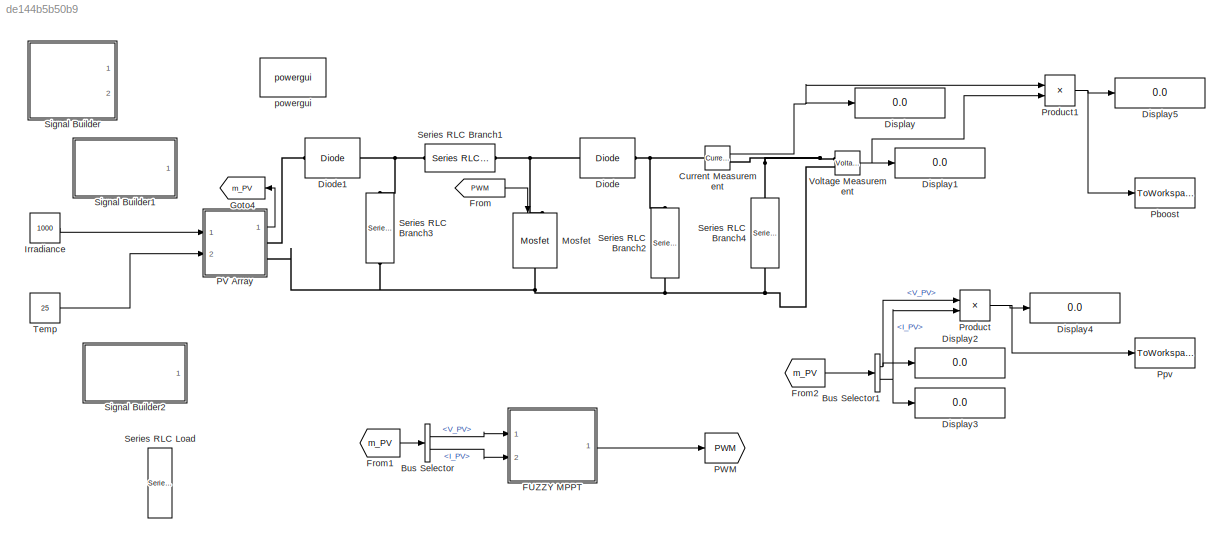
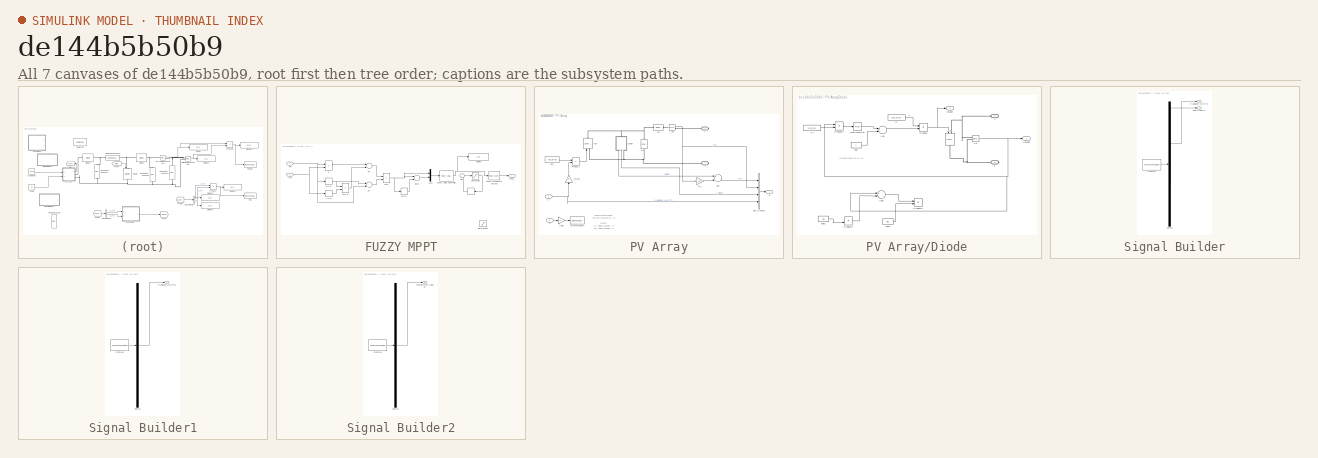
[diagram: thumbnail index - all 7 canvases of the model, root first then tree order]
MODEL slx_de144b5b50b9
KIND model
BLOCK [BusSelector] Bus Selector
  OutputSignals = V_PV,I_PV
  Ports = [1, 2]
BLOCK [BusSelector] Bus Selector1
  OutputSignals = V_PV,I_PV
  Ports = [1, 2]
BLOCK [Reference] Current Measurement  REF=powerlib/Measurements/Current Measurement
  OutputType = Complex
  PSBequivalent = 0
  PhasorSimulation = off
  Ports = [0, 1, 0, 0, 0, 1, 1]
  SourceBlock = powerlib/Measurements/Current Measurement
  SourceType = Current Measurement
  UserDataPersistent = on
BLOCK [Reference] Diode  REF=powerlib/Power
Electronics/Diode
  Cs = 250e-9
  IC = 0
  Lon = 0
  Measurements = off
  Ports = [0, 0, 0, 0, 0, 1, 1]
  Ron = 0.001
  Rs = 500
  SourceBlock = powerlib/Power\nElectronics/Diode
  SourceType = Diode
  UseSnubber = off
  Vf = 0.8
BLOCK [Reference] Diode1  REF=powerlib/Power
Electronics/Diode
  Cs = 250e-9
  IC = 0
  Lon = 0
  Measurements = off
  Ports = [0, 0, 0, 0, 0, 1, 1]
  Ron = 0.001
  Rs = 500
  SourceBlock = powerlib/Power\nElectronics/Diode
  SourceType = Diode
  UseSnubber = off
  Vf = 0.8
BLOCK [Display] Display
  Decimation = 1
  Ports = [1]
BLOCK [Display] Display1
  Decimation = 1
  Ports = [1]
BLOCK [Display] Display2
  Decimation = 1
  Ports = [1]
BLOCK [Display] Display3
  Decimation = 1
  Ports = [1]
BLOCK [Display] Display4
  Decimation = 1
  Ports = [1]
BLOCK [Display] Display5
  Decimation = 1
  Ports = [1]
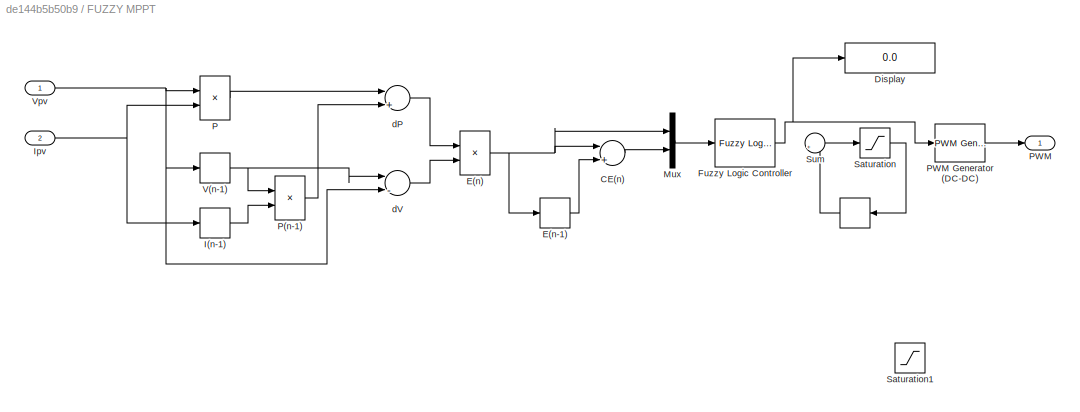
BLOCK [SubSystem] FUZZY MPPT
  Ports = [2, 1]
  RequestExecContextInheritance = off
BLOCK [Memory] FUZZY MPPT/ 
BLOCK [Sum] FUZZY MPPT/CE(n)
  InputSameDT = off
  Inputs = |+-
  OutDataTypeStr = Inherit: Inherit via internal rule
  Ports = [2, 1]
  SaturateOnIntegerOverflow = off
BLOCK [Display] FUZZY MPPT/Display
  Decimation = 1
  Ports = [1]
BLOCK [Product] FUZZY MPPT/E(n)
  InputSameDT = off
  Inputs = */
  OutDataTypeStr = Inherit: Inherit via internal rule
  Ports = [2, 1]
  RndMeth = Floor
  SaturateOnIntegerOverflow = off
BLOCK [Memory] FUZZY MPPT/E(n-1)
BLOCK [Reference] FUZZY MPPT/Fuzzy Logic Controller  REF=fuzblock/Fuzzy Logic   (lib defined in mdl_858b3b3e7478)
Controller
  Ports = [1, 1]
  SourceBlock = fuzblock/Fuzzy Logic \nController
  SourceType = FIS
  fis = 'fuzzymppt2.fis'
BLOCK [Memory] FUZZY MPPT/I(n-1)
BLOCK [Inport] FUZZY MPPT/Ipv
  IconDisplay = Port number
  Port = 2
BLOCK [Mux] FUZZY MPPT/Mux
  DisplayOption = bar
  Inputs = 2
  Ports = [2, 1]
BLOCK [Product] FUZZY MPPT/P
  InputSameDT = off
  OutDataTypeStr = Inherit: Inherit via internal rule
  Ports = [2, 1]
  RndMeth = Floor
  SaturateOnIntegerOverflow = off
BLOCK [Product] FUZZY MPPT/P(n-1)
  InputSameDT = off
  OutDataTypeStr = Inherit: Inherit via internal rule
  Ports = [2, 1]
  RndMeth = Floor
  SaturateOnIntegerOverflow = off
BLOCK [Outport] FUZZY MPPT/PWM
  IconDisplay = Port number
BLOCK [Reference] FUZZY MPPT/PWM Generator (DC-DC)  REF=powerlib_meascontrol/Pulse & Signal
Generators/PWM Generator
(DC-DC)
  Fsw = 50000
  Ports = [1, 1]
  SourceBlock = powerlib_meascontrol/Pulse & Signal\nGenerators/PWM Generator\n(DC-DC)
  SourceType = PWM Generator (DC-DC)
  Ts = 0
BLOCK [Saturate] FUZZY MPPT/Saturation
  InputPortMap = u0
  Ports = [1, 1]
BLOCK [Saturate] FUZZY MPPT/Saturation1
  InputPortMap = u0
  Ports = [1, 1]
BLOCK [Sum] FUZZY MPPT/Sum
  IconShape = round
  InputSameDT = off
  Inputs = |++
  OutDataTypeStr = Inherit: Inherit via internal rule
  Ports = [2, 1]
  SaturateOnIntegerOverflow = off
BLOCK [Memory] FUZZY MPPT/V(n-1)
BLOCK [Inport] FUZZY MPPT/Vpv
  IconDisplay = Port number
BLOCK [Sum] FUZZY MPPT/dP
  InputSameDT = off
  Inputs = |+-
  OutDataTypeStr = Inherit: Inherit via internal rule
  Ports = [2, 1]
  SaturateOnIntegerOverflow = off
BLOCK [Sum] FUZZY MPPT/dV
  InputSameDT = off
  Inputs = |-+
  OutDataTypeStr = Inherit: Inherit via internal rule
  Ports = [2, 1]
  SaturateOnIntegerOverflow = off
BLOCK [From] From
  GotoTag = PWM
  TagVisibility = global
BLOCK [From] From1
  GotoTag = m_PV
  TagVisibility = global
BLOCK [From] From2
  GotoTag = m_PV
  TagVisibility = global
BLOCK [Goto] Goto4
  GotoTag = m_PV
  TagVisibility = global
BLOCK [Constant] Irradiance
  Value = 1000
BLOCK [Reference] Mosfet  REF=powerlib/Power
Electronics/Mosfet
  Cs = inf
  IC = 0
  Lon = 0
  Measurements = off
  Ports = [1, 0, 0, 0, 0, 1, 1]
  Rd = 0.01
  Ron = 0.1
  Rs = 1e5
  SourceBlock = powerlib/Power\nElectronics/Mosfet
  SourceType = Mosfet
  Vfd = 0
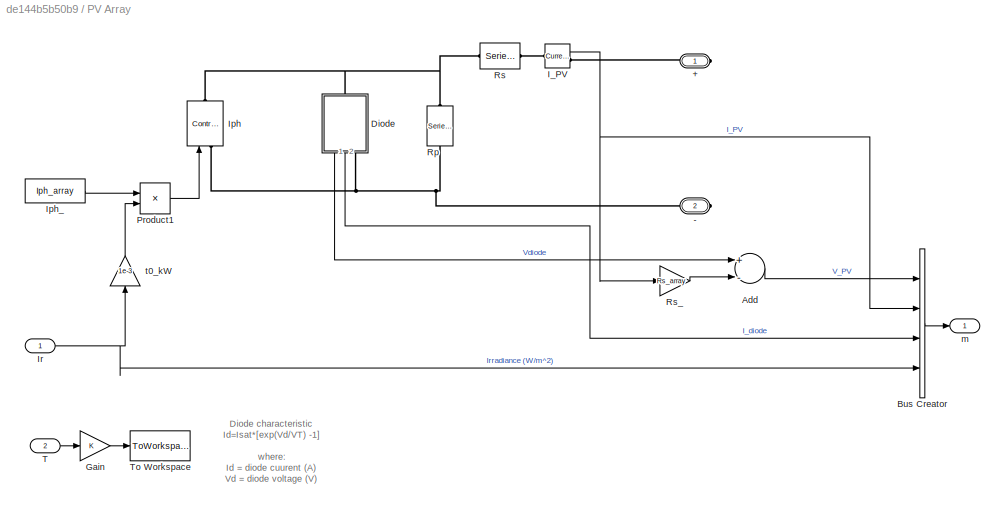
BLOCK [SubSystem] PV Array
  Ports = [2, 1, 0, 0, 0, 0, 2]
  RequestExecContextInheritance = off
BLOCK [PMIOPort] PV Array/+
  Port = 1
  Side = Right
BLOCK [PMIOPort] PV Array/-
  Port = 2
  Side = Right
BLOCK [Sum] PV Array/Add
  InputSameDT = off
  Inputs = +-
  OutDataTypeStr = Inherit: Inherit via internal rule
  Ports = [2, 1]
  SaturateOnIntegerOverflow = off
BLOCK [BusCreator] PV Array/Bus Creator
  DisplayOption = bar
  Ports = [4, 1]
BLOCK [SubSystem] PV Array/Diode
  Ports = [0, 2, 0, 0, 0, 1, 1]
  RequestExecContextInheritance = off
BLOCK [PMIOPort] PV Array/Diode/A
  Port = 1
  Side = Left
BLOCK [Sum] PV Array/Diode/Add
  InputSameDT = off
  Inputs = +-
  OutDataTypeStr = Inherit: Inherit via internal rule
  Ports = [2, 1]
  SaturateOnIntegerOverflow = off
BLOCK [Sum] PV Array/Diode/Add1
  InputSameDT = off
  OutDataTypeStr = Inherit: Inherit via internal rule
  Ports = [2, 1]
  SaturateOnIntegerOverflow = off
BLOCK [Reference] PV Array/Diode/Id  REF=powerlib/Electrical
Sources/Controlled Current Source
  Amplitude = 0
  Frequency = 0
  Initialize = on
  Measurements = None
  Phase = 0
  Ports = [1, 0, 0, 0, 0, 1, 1]
  SourceBlock = powerlib/Electrical\nSources/Controlled Current Source
  SourceType = Controlled Current Source
  Source_Type = AC
BLOCK [Outport] PV Array/Diode/Idiode
  IconDisplay = Port number
  Port = 2
BLOCK [Constant] PV Array/Diode/Is
  Value = Isat_array
BLOCK [PMIOPort] PV Array/Diode/K
  Port = 2
  Side = Right
BLOCK [Math] PV Array/Diode/Math Function
  Ports = [1, 1]
BLOCK [Product] PV Array/Diode/Product
  InputSameDT = off
  OutDataTypeStr = Inherit: Inherit via internal rule
  Ports = [2, 1]
  SaturateOnIntegerOverflow = off
BLOCK [Product] PV Array/Diode/Product1
  InputSameDT = off
  Inputs = */
  OutDataTypeStr = Inherit: Inherit via internal rule
  Ports = [2, 1]
  SaturateOnIntegerOverflow = off
BLOCK [Product] PV Array/Diode/Product2
  InputSameDT = off
  OutDataTypeStr = Inherit: Inherit via internal rule
  Ports = [2, 1]
  SaturateOnIntegerOverflow = off
BLOCK [Product] PV Array/Diode/Product3
  InputSameDT = off
  Inputs = */
  OutDataTypeStr = Inherit: Inherit via internal rule
  Ports = [2, 1]
  SaturateOnIntegerOverflow = off
BLOCK [Constant] PV Array/Diode/VT
  Value = VT_array
BLOCK [Reference] PV Array/Diode/Vd  REF=powerlib/Measurements/Voltage Measurement
  OutputType = Complex
  PSBequivalent = 0
  PhasorSimulation = off
  Ports = [0, 1, 0, 0, 0, 2]
  SourceBlock = powerlib/Measurements/Voltage Measurement
  SourceType = Voltage Measurement
BLOCK [Outport] PV Array/Diode/Vdiode
  IconDisplay = Port number
BLOCK [Constant] PV Array/Diode/one
BLOCK [Constant] PV Array/Diode/one1
  Value = Rs
BLOCK [Constant] PV Array/Diode/one2
  Value = Rp
BLOCK [Gain] PV Array/Gain
  OutDataTypeStr = Inherit: Inherit via internal rule
  ParamDataTypeStr = Inherit: Inherit via internal rule
  SaturateOnIntegerOverflow = off
BLOCK [Reference] PV Array/I_PV  REF=powerlib/Measurements/Current Measurement
  OutputType = Complex
  PSBequivalent = 0
  PhasorSimulation = off
  Ports = [0, 1, 0, 0, 0, 1, 1]
  SourceBlock = powerlib/Measurements/Current Measurement
  SourceType = Current Measurement
BLOCK [Reference] PV Array/Iph  REF=powerlib/Electrical
Sources/Controlled Current Source
  Amplitude = 0
  Frequency = 0
  Initialize = on
  Measurements = None
  Phase = 0
  Ports = [1, 0, 0, 0, 0, 1, 1]
  SourceBlock = powerlib/Electrical\nSources/Controlled Current Source
  SourceType = Controlled Current Source
  Source_Type = AC
BLOCK [Constant] PV Array/Iph_
  Value = Iph_array
BLOCK [Inport] PV Array/Ir
  IconDisplay = Port number
BLOCK [Product] PV Array/Product1
  InputSameDT = off
  Inputs = **
  OutDataTypeStr = Inherit: Inherit via internal rule
  Ports = [2, 1]
  SaturateOnIntegerOverflow = off
BLOCK [Reference] PV Array/Rp  REF=powerlib/Elements/Series RLC Branch
  BranchType = R
  Capacitance = 1e-6
  Inductance = 1e-3
  InitialCurrent = 0
  InitialVoltage = 0
  LConnTagsString = __new0
  Measurements = Branch current
  Ports = [0, 0, 0, 0, 0, 1, 1]
  RConnTagsString = __new0
  Resistance = Rp_array
  SetiL0 = off
  Setx0 = off
  SourceBlock = powerlib/Elements/Series RLC Branch
  SourceType = Series RLC Branch
BLOCK [Reference] PV Array/Rs  REF=powerlib/Elements/Series RLC Branch
  BranchType = R
  Capacitance = 1e-6
  Inductance = 1e-3
  InitialCurrent = 0
  InitialVoltage = 0
  LConnTagsString = __new0
  Measurements = None
  Ports = [0, 0, 0, 0, 0, 1, 1]
  RConnTagsString = __new0
  Resistance = Rs_array
  SetiL0 = off
  Setx0 = off
  SourceBlock = powerlib/Elements/Series RLC Branch
  SourceType = Series RLC Branch
BLOCK [Gain] PV Array/Rs_
  Gain = Rs_array
  OutDataTypeStr = Inherit: Inherit via internal rule
  ParamDataTypeStr = Inherit: Inherit via internal rule
  SaturateOnIntegerOverflow = off
BLOCK [Inport] PV Array/T
  IconDisplay = Port number
  Port = 2
BLOCK [ToWorkspace] PV Array/To Workspace
  FixptAsFi = on
  MaxDataPoints = inf
  Ports = [1]
  SampleTime = -1
  SaveFormat = Structure
  VariableName = T_user
BLOCK [Outport] PV Array/m
  IconDisplay = Port number
BLOCK [Gain] PV Array/t0_kW
  Gain = 1e-3
  OutDataTypeStr = Inherit: Inherit via internal rule
  ParamDataTypeStr = Inherit: Inherit via internal rule
  SaturateOnIntegerOverflow = off
BLOCK [Goto] PWM
  GotoTag = PWM
  TagVisibility = global
BLOCK [ToWorkspace] Pboost
  FixptAsFi = on
  MaxDataPoints = inf
  Ports = [1]
  SampleTime = -1
  Save2DSignal = 3-D array (concatenate along third dimension)
  SaveFormat = Timeseries
  VariableName = Pboost
BLOCK [ToWorkspace] Ppv
  FixptAsFi = on
  MaxDataPoints = inf
  Ports = [1]
  SampleTime = -1
  Save2DSignal = 3-D array (concatenate along third dimension)
  SaveFormat = Timeseries
  VariableName = Ppv
BLOCK [Product] Product
  InputSameDT = off
  OutDataTypeStr = Inherit: Inherit via internal rule
  Ports = [2, 1]
  RndMeth = Floor
  SaturateOnIntegerOverflow = off
BLOCK [Product] Product1
  InputSameDT = off
  OutDataTypeStr = Inherit: Inherit via internal rule
  Ports = [2, 1]
  RndMeth = Floor
  SaturateOnIntegerOverflow = off
BLOCK [Reference] Series RLC Branch1  REF=powerlib/Elements/Series RLC Branch
  BranchType = L
  Capacitance = 1e-6
  Inductance = 160e-6
  InitialCurrent = 0
  InitialVoltage = 0
  LConnTagsString = __new0
  Measurements = None
  Ports = [0, 0, 0, 0, 0, 1, 1]
  RConnTagsString = __new0
  Resistance = 1
  SetiL0 = off
  Setx0 = off
  SourceBlock = powerlib/Elements/Series RLC Branch
  SourceType = Series RLC Branch
BLOCK [Reference] Series RLC Branch2  REF=powerlib/Elements/Series RLC Branch
  BranchType = C
  Capacitance = 10e-6
  Inductance = 1e-3
  InitialCurrent = 0
  InitialVoltage = 0
  LConnTagsString = __new0
  Measurements = None
  Ports = [0, 0, 0, 0, 0, 1, 1]
  RConnTagsString = __new0
  Resistance = 1
  SetiL0 = off
  Setx0 = off
  SourceBlock = powerlib/Elements/Series RLC Branch
  SourceType = Series RLC Branch
BLOCK [Reference] Series RLC Branch3  REF=powerlib/Elements/Series RLC Branch
  BranchType = C
  Capacitance = 1000e-6
  Inductance = 1e-3
  InitialCurrent = 0
  InitialVoltage = 0
  LConnTagsString = __new0
  Measurements = None
  Ports = [0, 0, 0, 0, 0, 1, 1]
  RConnTagsString = __new0
  Resistance = 1
  SetiL0 = off
  Setx0 = off
  SourceBlock = powerlib/Elements/Series RLC Branch
  SourceType = Series RLC Branch
BLOCK [Reference] Series RLC Branch4  REF=powerlib/Elements/Series RLC Branch
  BranchType = R
  Capacitance = 1e-6
  Inductance = 1e-3
  InitialCurrent = 0
  InitialVoltage = 0
  LConnTagsString = __new0
  Measurements = None
  Ports = [0, 0, 0, 0, 0, 1, 1]
  RConnTagsString = __new0
  Resistance = 9.8
  SetiL0 = off
  Setx0 = off
  SourceBlock = powerlib/Elements/Series RLC Branch
  SourceType = Series RLC Branch
BLOCK [Reference] Series RLC Load  REF=powerlib/Elements/Series RLC Load
  ActivePower = 305
  AttributesFormatString = \n
  CapacitivePower = 0
  InductivePower = 0
  InitialCurrent = 0
  InitialVoltage = 0
  LConnTagsString = a
  Measurements = None
  NominalFrequency = 50000
  NominalVoltage = 100
  Ports = [0, 0, 0, 0, 0, 1, 1]
  RConnTagsString = __new0
  SetiL0 = off
  Setx0 = off
  SourceBlock = powerlib/Elements/Series RLC Load
  SourceType = Series RLC Load
BLOCK [SubSystem] Signal Builder
  ClipboardFcn = sigbuilder_block('clipboard');
  CloseFcn = sigbuilder_block('close');
  ContinueFcn = sigbuilder_block('continue');
  CopyFcn = sigbuilder_block('copy');
  DeleteFcn = sigbuilder_block('delete');
  LoadFcn = sigbuilder_block('load');
  MaskHideContents = on
  ModelCloseFcn = sigbuilder_block('modelClose');
  NameChangeFcn = sigbuilder_block('namechange');
  OpenFcn = sigbuilder_block('open',[311.25 125.25 550.5 395.25 ]);
  PauseFcn = sigbuilder_block('pause');
  Ports = [0, 2]
  PreSaveFcn = sigbuilder_block('preSave');
  RequestExecContextInheritance = off
  StartFcn = sigbuilder_block('start');
  StopFcn = sigbuilder_block('stop');
  Tag = STV Subsys
BLOCK [Demux] Signal Builder/Demux
  Outputs = 2
  Ports = [1, 2]
  Tag = STV Demux
BLOCK [FromWorkspace] Signal Builder/FromWs
  SampleTime = 0
  Tag = STV FromWs
  VariableName = tuvar
  ZeroCross = on
BLOCK [Outport] Signal Builder/Irradiance (W//m^2)
  IconDisplay = Port number
  Tag = STV Outport
BLOCK [Outport] Signal Builder/Temp (deg C)
  IconDisplay = Port number
  Port = 2
  Tag = STV Outport
BLOCK [SubSystem] Signal Builder1
  ClipboardFcn = sigbuilder_block('clipboard');
  CloseFcn = sigbuilder_block('close');
  ContinueFcn = sigbuilder_block('continue');
  CopyFcn = sigbuilder_block('copy');
  DeleteFcn = sigbuilder_block('delete');
  LoadFcn = sigbuilder_block('load');
  MaskHideContents = on
  ModelCloseFcn = sigbuilder_block('modelClose');
  NameChangeFcn = sigbuilder_block('namechange');
  OpenFcn = sigbuilder_block('open',[311.25 125.25 550.5 395.25 ]);
  PauseFcn = sigbuilder_block('pause');
  Ports = [0, 1]
  PreSaveFcn = sigbuilder_block('preSave');
  RequestExecContextInheritance = off
  StartFcn = sigbuilder_block('start');
  StopFcn = sigbuilder_block('stop');
  Tag = STV Subsys
BLOCK [Demux] Signal Builder1/Demux
  Outputs = 1
  Ports = [1, 1]
  Tag = STV Demux
BLOCK [FromWorkspace] Signal Builder1/FromWs
  SampleTime = 0
  Tag = STV FromWs
  VariableName = tuvar
  ZeroCross = on
BLOCK [Outport] Signal Builder1/Irradiance (W//m^2)
  IconDisplay = Port number
  Tag = STV Outport
BLOCK [SubSystem] Signal Builder2
  ClipboardFcn = sigbuilder_block('clipboard');
  CloseFcn = sigbuilder_block('close');
  ContinueFcn = sigbuilder_block('continue');
  CopyFcn = sigbuilder_block('copy');
  DeleteFcn = sigbuilder_block('delete');
  LoadFcn = sigbuilder_block('load');
  MaskHideContents = on
  ModelCloseFcn = sigbuilder_block('modelClose');
  NameChangeFcn = sigbuilder_block('namechange');
  OpenFcn = sigbuilder_block('open',[6 31.5 948 505.5 ]);
  PauseFcn = sigbuilder_block('pause');
  Ports = [0, 1]
  PreSaveFcn = sigbuilder_block('preSave');
  RequestExecContextInheritance = off
  StartFcn = sigbuilder_block('start');
  StopFcn = sigbuilder_block('stop');
  Tag = STV Subsys
BLOCK [Demux] Signal Builder2/Demux
  Outputs = 1
  Ports = [1, 1]
  Tag = STV Demux
BLOCK [FromWorkspace] Signal Builder2/FromWs
  SampleTime = 0
  Tag = STV FromWs
  VariableName = tuvar
  ZeroCross = on
BLOCK [Outport] Signal Builder2/Temperature (deg C)
  IconDisplay = Port number
  Tag = STV Outport
BLOCK [Constant] Temp
  Value = 25
BLOCK [Reference] Voltage Measurement  REF=powerlib/Measurements/Voltage Measurement
  OutputType = Complex
  PSBequivalent = 0
  PhasorSimulation = off
  Ports = [0, 1, 0, 0, 0, 2]
  SourceBlock = powerlib/Measurements/Voltage Measurement
  SourceType = Voltage Measurement
  UserDataPersistent = on
BLOCK [Reference] powergui  REF=powerlib/powergui
  DisableRonSwitches = off
  DisableSnubberDevices = off
  DisableVfSwitches = off
  DisplayEquations = off
  DisplayStyle = 1
  EnableUseOfTLC = off
  ErrMax = 1e-4
  Frange = [0:2:500]
  FreqAxis = off
  FunctionMessages = off
  HookPort = off
  Interpol = off
  Iterations = 50
  MaxFrequency = 1000
  Pbase = 100e6
  Ports = []
  Priority = 1
  ResistiveCurrentMeasurement = off
  RestoreLinks = warning
  RmsSteady = 1
  SPID = off
  SampleTime = 50e-6
  ShowGrid = off
  SolverType = Tustin
  SourceBlock = powerlib/powergui
  SourceType = PSB option menu block
  StartTime = 0.0
  SwTol = 0
  Ts = 0
  UnitsV = kV
  UnitsW = MW
  UserDataPersistent = on
  Xlog = on
  Ylog = off
  ZoomFFT = off
  cycles = 1
  display = off
  echomessages = off
  frequency = 60
  frequencyindice = 0
  frequencyindicesteady = 1
  fundamental = 60
  methode = off
  save = off
  structure = 0
  variable = ZData
  x0status = blocks
ANNOTATION PV Array: Diode characteristic Id=Isat*[exp(Vd/VT) -1] where: Id = diode cuurent (A) Vd = diode voltage (V) Isat = diode saturation current (A) VT = temperature voltage = k*T/q*Qd*Ncell*Nser T = cell temperature (K), k = Boltzman constant = 1.3806e-23 J.K^-1 q = electron charge = 1.6022e-19 C Qd = diode quality factor Ncell= number of series-connected cells per module Nser = number of series-connected modul...<+13ch>
ANNOTATION PV Array/Diode: Id=Isat*[exp(Vd/Vt)-1]
NET Bus Selector1:1 -> Display2:1, Product:1
NET Bus Selector1:2 -> Display3:1, Product:2
LINE Bus Selector:1 -> FUZZY MPPT:1
LINE Bus Selector:2 -> FUZZY MPPT:2
NET Current Measurement:1 -> Display:1, Product1:1
LINE FUZZY MPPT/ :1 -> FUZZY MPPT/Sum:2
LINE FUZZY MPPT/CE(n):1 -> FUZZY MPPT/Mux:2
NET FUZZY MPPT/E(n):1 -> FUZZY MPPT/CE(n):1, FUZZY MPPT/E(n-1):1, FUZZY MPPT/Mux:1
LINE FUZZY MPPT/E(n-1):1 -> FUZZY MPPT/CE(n):2
NET FUZZY MPPT/Fuzzy Logic Controller:1 -> FUZZY MPPT/Display:1, FUZZY MPPT/PWM Generator (DC-DC):1
LINE FUZZY MPPT/I(n-1):1 -> FUZZY MPPT/P(n-1):2
NET FUZZY MPPT/Ipv:1 -> FUZZY MPPT/I(n-1):1, FUZZY MPPT/P:2
LINE FUZZY MPPT/Mux:1 -> FUZZY MPPT/Fuzzy Logic Controller:1
LINE FUZZY MPPT/P(n-1):1 -> FUZZY MPPT/dP:2
LINE FUZZY MPPT/P:1 -> FUZZY MPPT/dP:1
LINE FUZZY MPPT/PWM Generator (DC-DC):1 -> FUZZY MPPT/PWM:1
LINE FUZZY MPPT/Saturation:1 -> FUZZY MPPT/ :1
LINE FUZZY MPPT/Sum:1 -> FUZZY MPPT/Saturation:1
NET FUZZY MPPT/V(n-1):1 -> FUZZY MPPT/P(n-1):1, FUZZY MPPT/dV:1
NET FUZZY MPPT/Vpv:1 -> FUZZY MPPT/P:1, FUZZY MPPT/V(n-1):1, FUZZY MPPT/dV:2
LINE FUZZY MPPT/dP:1 -> FUZZY MPPT/E(n):1
LINE FUZZY MPPT/dV:1 -> FUZZY MPPT/E(n):2
LINE FUZZY MPPT:1 -> PWM:1
LINE From1:1 -> Bus Selector:1
LINE From2:1 -> Bus Selector1:1
LINE From:1 -> Mosfet:1
LINE Irradiance:1 -> PV Array:1
LINE PV Array/Add:1 -> PV Array/Bus Creator:1
LINE PV Array/Bus Creator:1 -> PV Array/m:1
LINE PV Array/Diode/Add1:1 -> PV Array/Diode/Product3:1
LINE PV Array/Diode/Add:1 -> PV Array/Diode/Product:2
LINE PV Array/Diode/Is:1 -> PV Array/Diode/Product:1
LINE PV Array/Diode/Math Function:1 -> PV Array/Diode/Add:1
LINE PV Array/Diode/Product1:1 -> PV Array/Diode/Math Function:1
LINE PV Array/Diode/Product2:1 -> PV Array/Diode/Add1:2
NET PV Array/Diode/Product:1 -> PV Array/Diode/Id:1, PV Array/Diode/Idiode:1
LINE PV Array/Diode/VT:1 -> PV Array/Diode/Product1:2
NET PV Array/Diode/Vd:1 -> PV Array/Diode/Add1:1, PV Array/Diode/Product1:1, PV Array/Diode/Vdiode:1
LINE PV Array/Diode/one1:1 -> PV Array/Diode/Product2:2
LINE PV Array/Diode/one2:1 -> PV Array/Diode/Product3:2
LINE PV Array/Diode/one:1 -> PV Array/Diode/Add:2
LINE PV Array/Diode:1 -> PV Array/Add:1
LINE PV Array/Diode:2 -> PV Array/Bus Creator:3
LINE PV Array/Gain:1 -> PV Array/To Workspace:1
NET PV Array/I_PV:1 -> PV Array/Bus Creator:2, PV Array/Rs_:1
LINE PV Array/Iph_:1 -> PV Array/Product1:1
NET PV Array/Ir:1 -> PV Array/Bus Creator:4, PV Array/t0_kW:1
LINE PV Array/Product1:1 -> PV Array/Iph:1
LINE PV Array/Rs_:1 -> PV Array/Add:2
LINE PV Array/T:1 -> PV Array/Gain:1
LINE PV Array/t0_kW:1 -> PV Array/Product1:2
LINE PV Array:1 -> Goto4:1
NET Product1:1 -> Display5:1, Pboost:1
NET Product:1 -> Display4:1, Ppv:1
LINE Temp:1 -> PV Array:2
NET Voltage Measurement:1 -> Display1:1, Product1:2
PNET net1: Current Measurement:LConn1 -- Diode:RConn1 -- Series RLC Branch2:LConn1
PNET net2: Current Measurement:RConn1 -- Series RLC Branch4:LConn1 -- Voltage Measurement:LConn1
PLINE Diode1:LConn1 -- PV Array:RConn1
PNET net3: Diode1:RConn1 -- Series RLC Branch1:LConn1 -- Series RLC Branch3:LConn1
PNET net4: Diode:LConn1 -- Mosfet:LConn1 -- Series RLC Branch1:RConn1
PNET net5: Mosfet:RConn1 -- PV Array:RConn2 -- Series RLC Branch2:RConn1 -- Series RLC Branch3:RConn1 -- Series RLC Branch4:RConn1 -- Voltage Measurement:LConn2
PLINE PV Array/+:RConn1 -- PV Array/I_PV:RConn1
PNET net6: PV Array/-:RConn1 -- PV Array/Diode:RConn1 -- PV Array/Iph:LConn1 -- PV Array/Rp:RConn1
PNET net7: PV Array/Diode/A:RConn1 -- PV Array/Diode/Id:LConn1 -- PV Array/Diode/Vd:LConn1
PNET net8: PV Array/Diode/Id:RConn1 -- PV Array/Diode/K:RConn1 -- PV Array/Diode/Vd:LConn2
PNET net9: PV Array/Diode:LConn1 -- PV Array/Iph:RConn1 -- PV Array/Rp:LConn1 -- PV Array/Rs:RConn1
PLINE PV Array/I_PV:LConn1 -- PV Array/Rs:LConn1
note: NET lines group one-source signal fan-out (src -> all destinations, sorted); 1:1 wires keep LINE; PNET lines group multi-terminal physical nets as a canonical sorted terminal list (undirected conserving connections); 2-terminal nets keep the pairwise PLINE form
